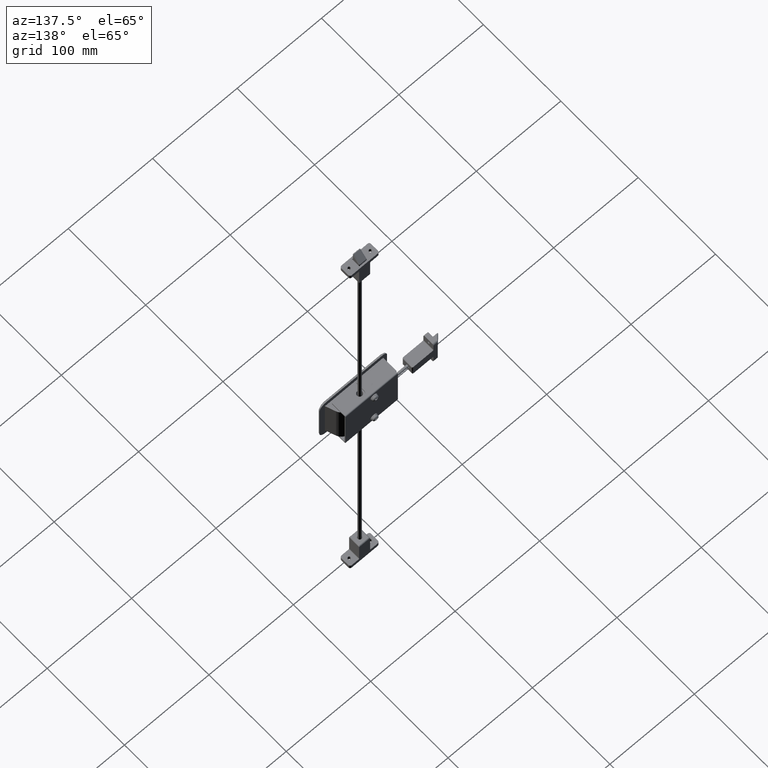
[diagram: clean part render]
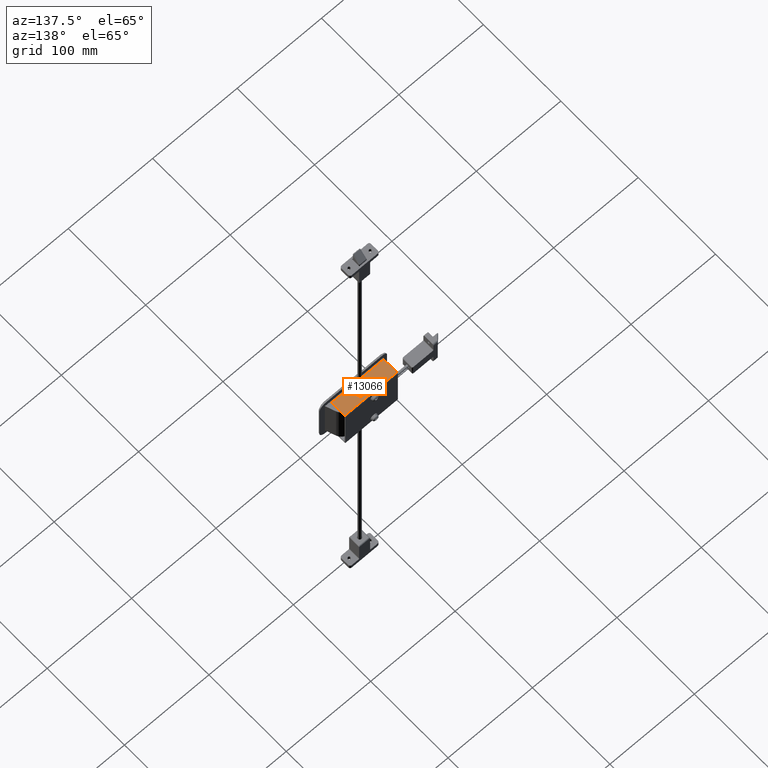
[diagram: same view with one face highlighted and labeled with its STEP entity id]
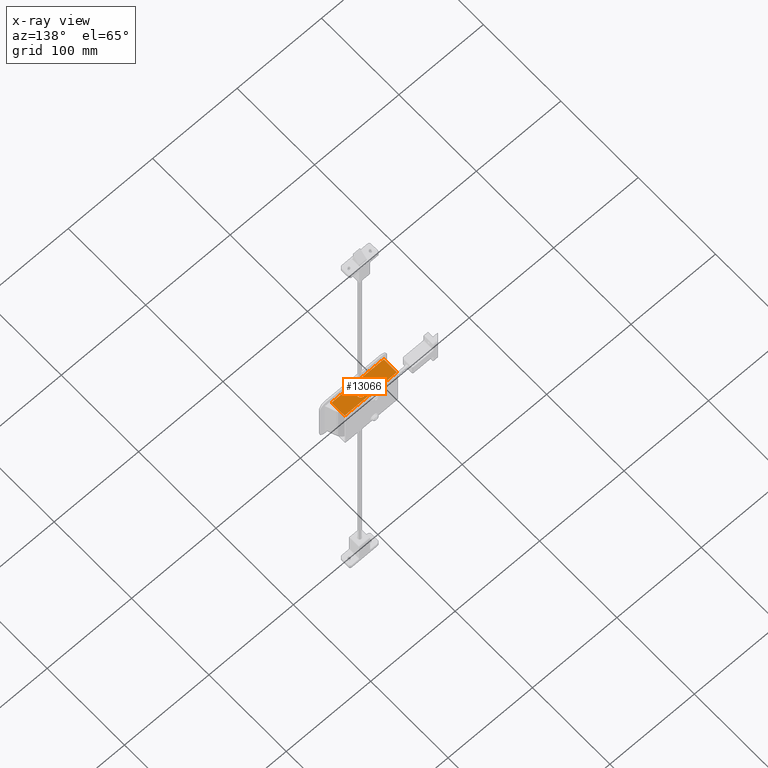
[diagram: x-ray of the same camera — body ghosted, the highlighted face saturated]
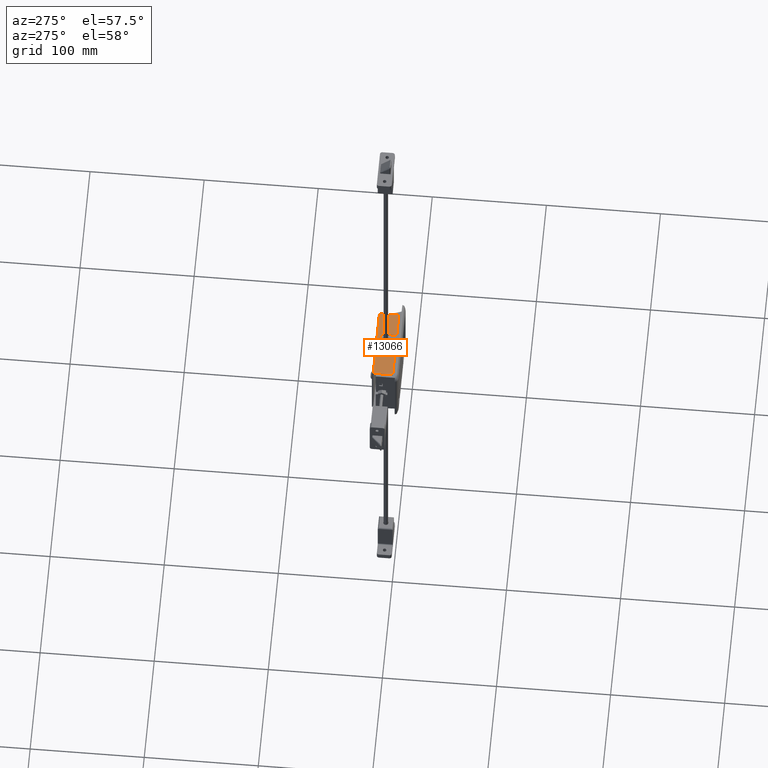
[diagram: same view with one face highlighted and labeled with its STEP entity id]
A machine part, auxiliary view. The second image highlights one B-rep face of the part: STEP entity #13066.
The next image is the same camera in x-ray: the body ghosted, the highlighted face saturated — about 0% of this face is hidden behind the body in this view.
A second angle (auxiliary view) of the same face is appended — the face is thin or edge-on in the first view.
In plain terms, the highlighted face is a freeform B-spline surface patch.
Its self-contained STEP definition (entity closure, byte-faithful):
#12312=CARTESIAN_POINT('',(34.0,25.550000000000001,27.500000000000000));
#12313=VERTEX_POINT('',#12312);
#12319=CARTESIAN_POINT('',(33.0,26.550000000000001,27.500000000000000));
#12320=VERTEX_POINT('',#12319);
#12321=CARTESIAN_POINT('',(33.0,26.550000000000001,27.500000000000000));
#12322=CARTESIAN_POINT('',(32.998746536198979,26.320608060091960,27.500000000000011));
#12323=CARTESIAN_POINT('',(33.141003289518842,25.929582878850880,27.500000000000000));
#12324=CARTESIAN_POINT('',(33.574546422818742,25.608475057245659,27.500000000000011));
#12325=CARTESIAN_POINT('',(33.869136505198703,25.549905546433489,27.500000000000021));
#12326=CARTESIAN_POINT('',(34.0,25.550000000000001,27.500000000000000));
#12327=B_SPLINE_CURVE_WITH_KNOTS('',3,(#12321,#12322,#12323,#12324,#12325,#12326),.UNSPECIFIED.,.F.,.U.,(4,1,1,4),(0.000004296705880,0.687565360555203,1.178569503355150,1.571424572238251),.UNSPECIFIED.);
#12328=EDGE_CURVE('',#12320,#12313,#12327,.T.);
#12365=CARTESIAN_POINT('',(25.0,26.550000000000001,27.500000000000000));
#12366=VERTEX_POINT('',#12365);
#12372=CARTESIAN_POINT('',(24.0,25.550000000000001,27.500000000000000));
#12373=VERTEX_POINT('',#12372);
#12374=CARTESIAN_POINT('',(24.0,25.550000000000001,27.500000000000000));
#12375=CARTESIAN_POINT('',(24.130825152446452,25.549877958077278,27.499999999999989));
#12376=CARTESIAN_POINT('',(24.425480625426498,25.608505051267141,27.500000000000028));
#12377=CARTESIAN_POINT('',(24.858980949289808,25.929561724178829,27.499999999999989));
#12378=CARTESIAN_POINT('',(25.001256234880142,26.320614156526268,27.499999999999989));
#12379=CARTESIAN_POINT('',(25.0,26.550000000000001,27.500000000000000));
#12380=B_SPLINE_CURVE_WITH_KNOTS('',3,(#12374,#12375,#12376,#12377,#12378,#12379),.UNSPECIFIED.,.F.,.U.,(4,1,1,4),(0.000004296705597,0.392859365588733,0.883863508388787,1.571424572238249),.UNSPECIFIED.);
#12381=EDGE_CURVE('',#12373,#12366,#12380,.T.);
#12558=CARTESIAN_POINT('',(33.0,36.049999999999997,27.500000000000000));
#12559=VERTEX_POINT('',#12558);
#12565=CARTESIAN_POINT('',(28.999981883252950,40.049999999958978,27.500000000000000));
#12566=VERTEX_POINT('',#12565);
#12567=CARTESIAN_POINT('',(33.0,36.049999999999997,27.500000000000000));
#12568=CARTESIAN_POINT('',(33.000257916987799,36.508154078770723,27.500000000000011));
#12569=CARTESIAN_POINT('',(32.829635555394432,37.489832636045563,27.499999999999989));
#12570=CARTESIAN_POINT('',(32.041293654097011,38.806358153844542,27.499999999999989));
#12571=CARTESIAN_POINT('',(30.700919616664368,39.799714018881417,27.500000000000082));
#12572=CARTESIAN_POINT('',(29.589200464136638,40.050835093929400,27.499999999999950));
#12573=CARTESIAN_POINT('',(28.999981883252950,40.049999999958978,27.500000000000000));
#12574=B_SPLINE_CURVE_WITH_KNOTS('',3,(#12567,#12568,#12569,#12570,#12571,#12572,#12573),.UNSPECIFIED.,.F.,.U.,(4,1,1,1,4),(0.000000881622589,1.374586051366376,2.945560808223660,4.516498488839141,6.283825745046080),.UNSPECIFIED.);
#12575=EDGE_CURVE('',#12559,#12566,#12574,.T.);
#12577=CARTESIAN_POINT('',(25.0,36.049999999999997,27.500000000000000));
#12578=VERTEX_POINT('',#12577);
#12579=CARTESIAN_POINT('',(28.999981883252950,40.049999999958978,27.500000000000000));
#12580=CARTESIAN_POINT('',(28.410771084333600,40.050838119642791,27.499999999999979));
#12581=CARTESIAN_POINT('',(27.299031328579190,39.799715482983629,27.500000000000039));
#12582=CARTESIAN_POINT('',(25.958715824566429,38.806357015476920,27.500000000000028));
#12583=CARTESIAN_POINT('',(25.170292799677949,37.489827696794592,27.499999999999829));
#12584=CARTESIAN_POINT('',(24.999784358017131,36.508159322058773,27.500000000000160));
#12585=CARTESIAN_POINT('',(25.0,36.049999999999997,27.500000000000000));
#12586=B_SPLINE_CURVE_WITH_KNOTS('',3,(#12579,#12580,#12581,#12582,#12583,#12584,#12585),.UNSPECIFIED.,.F.,.U.,(4,1,1,1,4),(0.000000977181542,1.767322467654892,3.338255002949825,4.909224635225161,6.283805321258687),.UNSPECIFIED.);
#12587=EDGE_CURVE('',#12566,#12578,#12586,.T.);
#12602=CARTESIAN_POINT('',(25.0,36.049999999999997,27.500000000000000));
#12603=CARTESIAN_POINT('',(25.0,26.550000000000001,27.500000000000000));
#12604=QUASI_UNIFORM_CURVE('',1,(#12602,#12603),.UNSPECIFIED.,.F.,.U.);
#12605=EDGE_CURVE('',#12578,#12366,#12604,.T.);
#12628=CARTESIAN_POINT('',(33.0,26.550000000000001,27.500000000000000));
#12629=CARTESIAN_POINT('',(33.0,36.049999999999997,27.500000000000000));
#12630=QUASI_UNIFORM_CURVE('',1,(#12628,#12629),.UNSPECIFIED.,.F.,.U.);
#12631=EDGE_CURVE('',#12320,#12559,#12630,.T.);
#12757=CARTESIAN_POINT('',(53.0,25.550000000000001,27.500000000000000));
#12758=VERTEX_POINT('',#12757);
#12759=CARTESIAN_POINT('',(54.0,26.550000000000001,27.500000000000000));
#12760=VERTEX_POINT('',#12759);
#12761=CARTESIAN_POINT('',(53.0,25.550000000000001,27.500000000000000));
#12762=CARTESIAN_POINT('',(53.229367530478477,25.548753812927579,27.500000000000050));
#12763=CARTESIAN_POINT('',(53.620477456531731,25.690974340088591,27.499999999999901));
#12764=CARTESIAN_POINT('',(53.941468612505780,26.124561061049050,27.500000000000110));
#12765=CARTESIAN_POINT('',(54.000107455430523,26.419152578943351,27.499999999999918));
#12766=CARTESIAN_POINT('',(54.0,26.550000000000001,27.500000000000000));
#12767=B_SPLINE_CURVE_WITH_KNOTS('',3,(#12761,#12762,#12763,#12764,#12765,#12766),.UNSPECIFIED.,.F.,.U.,(4,1,1,4),(0.000004296705140,0.687565360554816,1.178569503355013,1.571424572238263),.UNSPECIFIED.);
#12768=EDGE_CURVE('',#12758,#12760,#12767,.T.);
#12810=CARTESIAN_POINT('',(-8.0,26.550000000000001,27.500000000000000));
#12811=VERTEX_POINT('',#12810);
#12812=CARTESIAN_POINT('',(-7.0,25.550000000000001,27.500000000000000));
#12813=VERTEX_POINT('',#12812);
#12814=CARTESIAN_POINT('',(-8.0,26.550000000000001,27.500000000000000));
#12815=CARTESIAN_POINT('',(-8.001253463801076,26.320608060092020,27.499999999999989));
#12816=CARTESIAN_POINT('',(-7.858996710481128,25.929582878850908,27.500000000000039));
#12817=CARTESIAN_POINT('',(-7.425453577181284,25.608475057245631,27.500000000000000));
#12818=CARTESIAN_POINT('',(-7.130863494801317,25.549905546433479,27.499999999999989));
#12819=CARTESIAN_POINT('',(-7.0,25.550000000000001,27.500000000000000));
#12820=B_SPLINE_CURVE_WITH_KNOTS('',3,(#12814,#12815,#12816,#12817,#12818,#12819),.UNSPECIFIED.,.F.,.U.,(4,1,1,4),(0.000004296705692,0.687565360555082,1.178569503355109,1.571424572238250),.UNSPECIFIED.);
#12821=EDGE_CURVE('',#12811,#12813,#12820,.T.);
#12887=CARTESIAN_POINT('',(54.0,42.549999999999997,27.500000000000000));
#12888=VERTEX_POINT('',#12887);
#12898=CARTESIAN_POINT('',(54.0,42.549999999999997,27.500000000000000));
#12899=CARTESIAN_POINT('',(54.0,26.550000000000001,27.500000000000000));
#12900=QUASI_UNIFORM_CURVE('',1,(#12898,#12899),.UNSPECIFIED.,.F.,.U.);
#12901=EDGE_CURVE('',#12888,#12760,#12900,.T.);
#12952=CARTESIAN_POINT('',(-8.0,42.549999999999997,27.500000000000000));
#12953=VERTEX_POINT('',#12952);
#12954=CARTESIAN_POINT('',(-8.0,42.549999999999997,27.500000000000000));
#12955=CARTESIAN_POINT('',(-8.0,26.550000000000001,27.500000000000000));
#12956=QUASI_UNIFORM_CURVE('',1,(#12954,#12955),.UNSPECIFIED.,.F.,.U.);
#12957=EDGE_CURVE('',#12953,#12811,#12956,.T.);
#13027=CARTESIAN_POINT('',(34.0,25.550000000000001,27.500000000000000));
#13028=CARTESIAN_POINT('',(53.0,25.550000000000001,27.500000000000000));
#13029=QUASI_UNIFORM_CURVE('',1,(#13027,#13028),.UNSPECIFIED.,.F.,.U.);
#13030=EDGE_CURVE('',#12313,#12758,#13029,.T.);
#13038=CARTESIAN_POINT('',(-11.096899879831970,24.700849295766059,27.500000000000000));
#13039=CARTESIAN_POINT('',(57.096901542801547,24.700849295766059,27.500000000000000));
#13040=CARTESIAN_POINT('',(-11.096899879831970,43.399149184315512,27.500000000000000));
#13041=CARTESIAN_POINT('',(57.096901542801547,43.399149184315512,27.500000000000000));
#13042=B_SPLINE_SURFACE_WITH_KNOTS('',1,1,((#13038,#13040),(#13039,#13041)),.UNSPECIFIED.,.F.,.F.,.U.,(2,2),(2,2),(0.0,68.193801422633527),(0.0,18.698299888549450),.UNSPECIFIED.);
#13043=ORIENTED_EDGE('',*,*,#12631,.F.);
#13044=ORIENTED_EDGE('',*,*,#12328,.T.);
#13045=ORIENTED_EDGE('',*,*,#13030,.T.);
#13046=ORIENTED_EDGE('',*,*,#12768,.T.);
#13047=ORIENTED_EDGE('',*,*,#12901,.F.);
#13048=CARTESIAN_POINT('',(-8.0,42.549999999999997,27.500000000000000));
#13049=CARTESIAN_POINT('',(54.0,42.549999999999997,27.500000000000000));
#13050=QUASI_UNIFORM_CURVE('',1,(#13048,#13049),.UNSPECIFIED.,.F.,.U.);
#13051=EDGE_CURVE('',#12953,#12888,#13050,.T.);
#13052=ORIENTED_EDGE('',*,*,#13051,.F.);
#13053=ORIENTED_EDGE('',*,*,#12957,.T.);
#13054=ORIENTED_EDGE('',*,*,#12821,.T.);
#13055=CARTESIAN_POINT('',(-7.0,25.550000000000001,27.500000000000000));
#13056=CARTESIAN_POINT('',(24.0,25.550000000000001,27.500000000000000));
#13057=QUASI_UNIFORM_CURVE('',1,(#13055,#13056),.UNSPECIFIED.,.F.,.U.);
#13058=EDGE_CURVE('',#12813,#12373,#13057,.T.);
#13059=ORIENTED_EDGE('',*,*,#13058,.T.);
#13060=ORIENTED_EDGE('',*,*,#12381,.T.);
#13061=ORIENTED_EDGE('',*,*,#12605,.F.);
#13062=ORIENTED_EDGE('',*,*,#12587,.F.);
#13063=ORIENTED_EDGE('',*,*,#12575,.F.);
#13064=EDGE_LOOP('',(#13043,#13044,#13045,#13046,#13047,#13052,#13053,#13054,#13059,#13060,#13061,#13062,#13063));
#13065=FACE_OUTER_BOUND('',#13064,.T.);
#13066=ADVANCED_FACE('',(#13065),#13042,.T.);